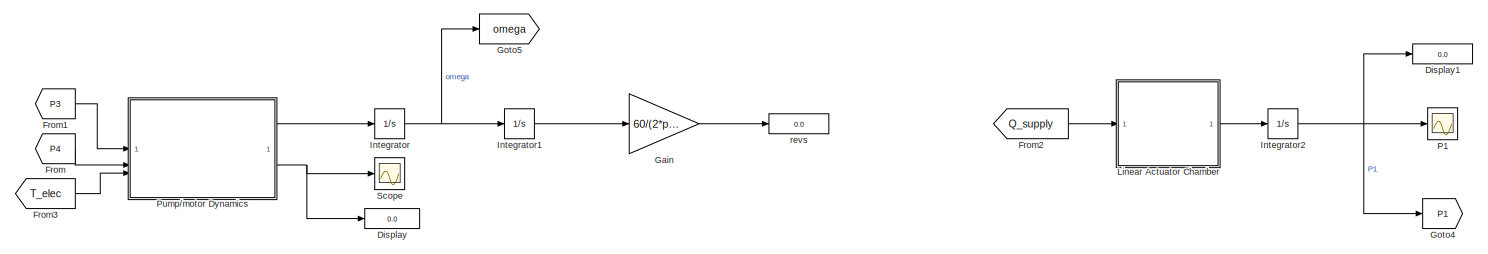
[diagram: root canvas - part 1/3, top right region]
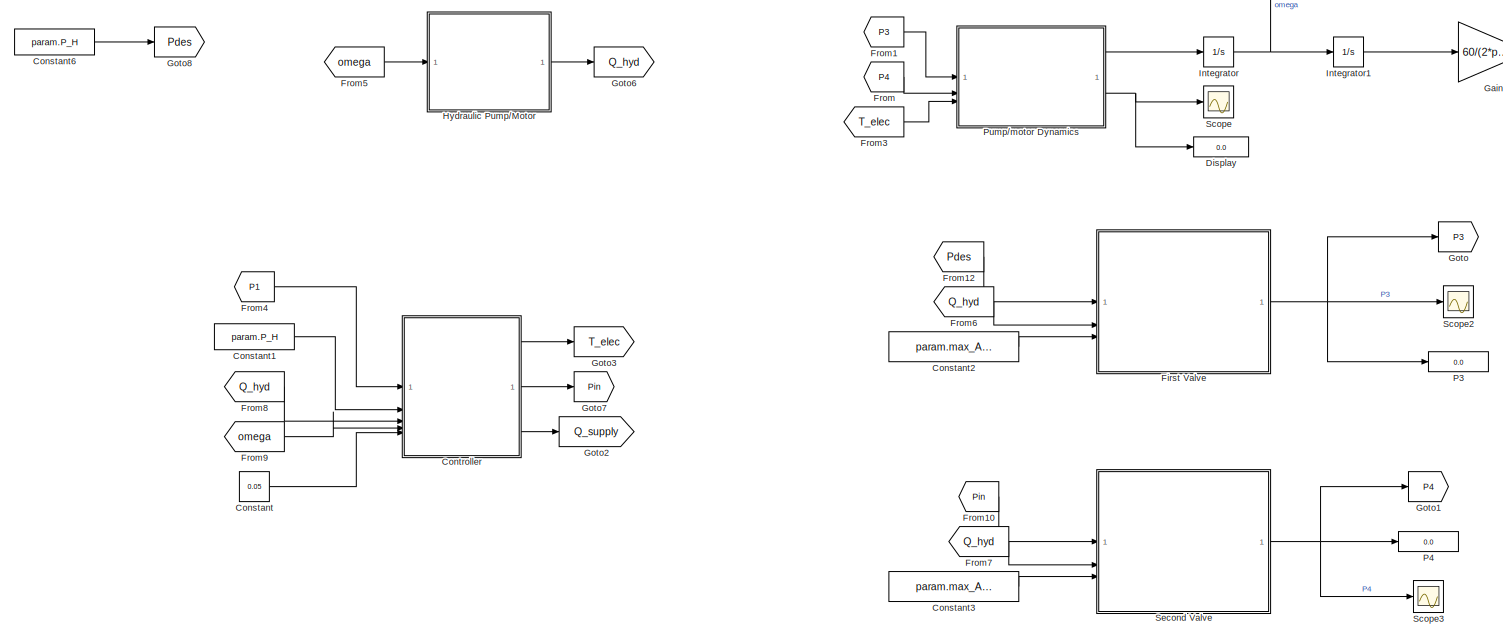
[diagram: root canvas - part 2/3, top left region]
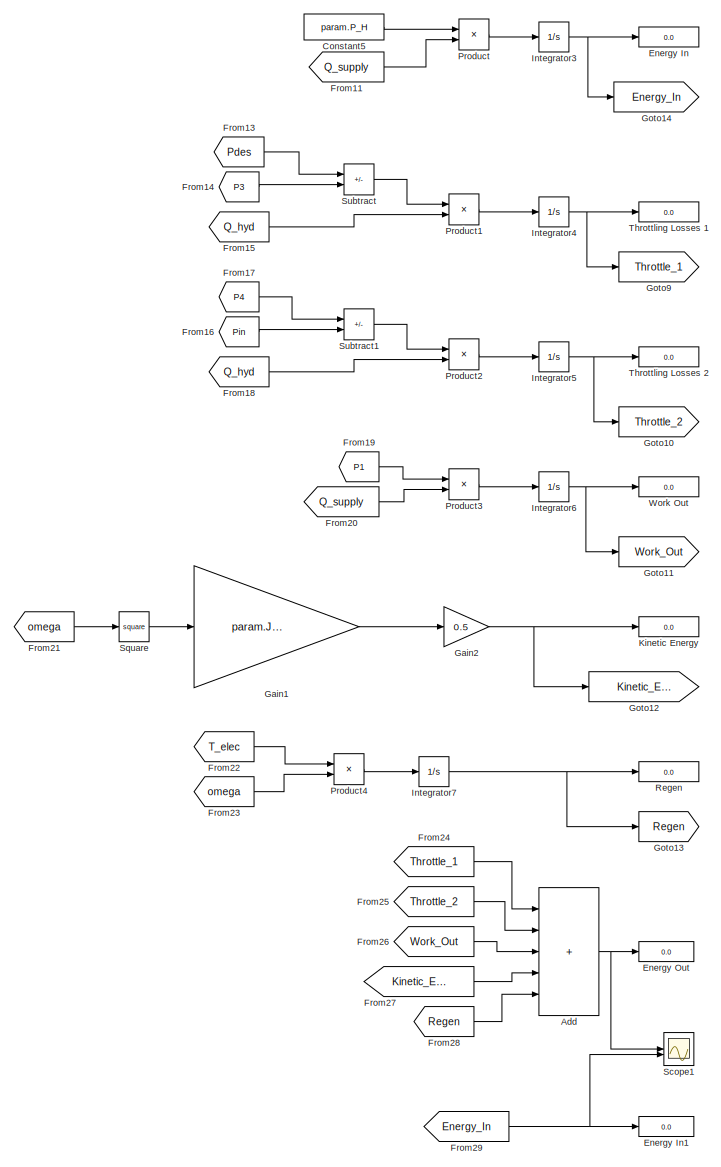
[diagram: root canvas - part 3/3, right side, full height]
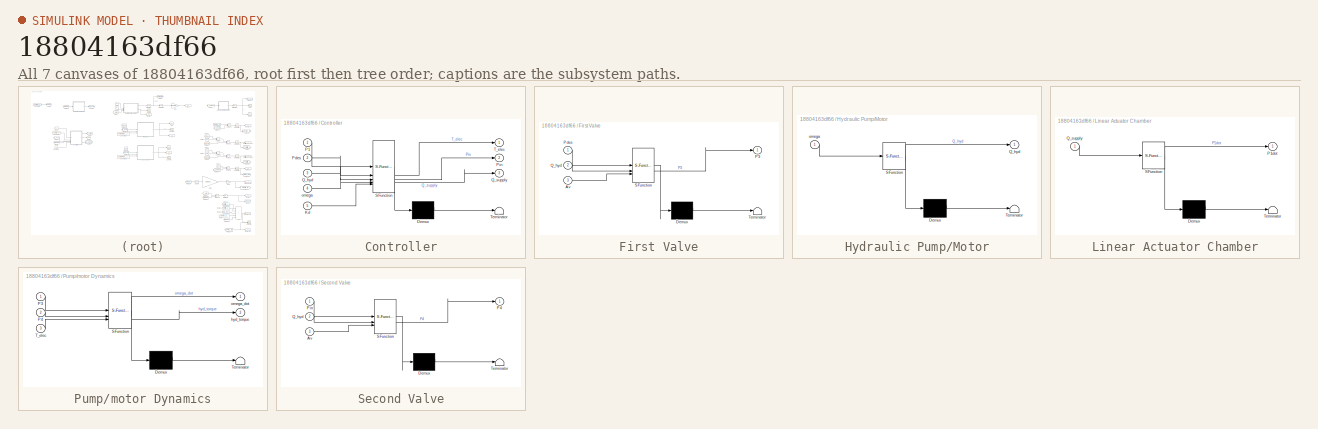
[diagram: thumbnail index - all 7 canvases of the model, root first then tree order]
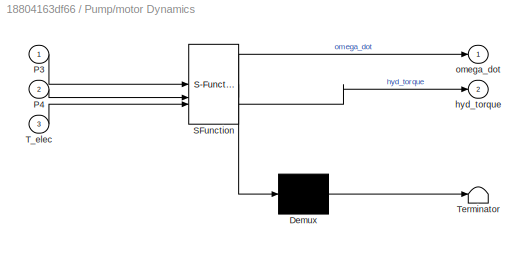
MODEL slx_18804163df66
KIND model
CONFIG AbsTol = auto
CONFIG EnableMultiTasking = off
CONFIG FixedStep = 1e-6
CONFIG InitFcn = %% Parameters\n\nparam = struct();\n\n% Volume of chambers \nparam.V1_0 = 1e-3;\nparam.V2_0 = 20e-6;\n\n% Pressure rails\nparam.P_H = 20e6;\nparam.P_M = 10e6;\n\n% Valve things\nparam.max_Avt = 0.5*0.25*pi*(20e-3)^2;\nparam.Cd = 0.6;\n\n% Fluid properties\nparam.beta = 1.8e9;\nparam.rho = 870;\n\n% Electric motor stuff\nparam.Kt = 70.5e-3;\nparam.Ke = 70.5e-3;\nparam.J_elec = 3000e-7;\n\n% Pump things\nparam.J_hyd = 3000e-...<+69ch>
CONFIG MaxStep = auto
CONFIG MinStep = auto
CONFIG RelTol = 1e-3
CONFIG SampleTimeConstraint = Unconstrained
CONFIG SolverName = ode4
CONFIG StartTime = 0.0
CONFIG StopTime = 0.25
BLOCK [Sum] Add
  IconShape = rectangular
  Inputs = +++++
BLOCK [Constant] Constant
  Value = 0.05
BLOCK [Constant] Constant1
  Value = param.P_H
BLOCK [Constant] Constant2
  Value = param.max_Avt
BLOCK [Constant] Constant3
  Value = param.max_Avt
BLOCK [Constant] Constant5
  Value = param.P_H
BLOCK [Constant] Constant6
  Value = param.P_H
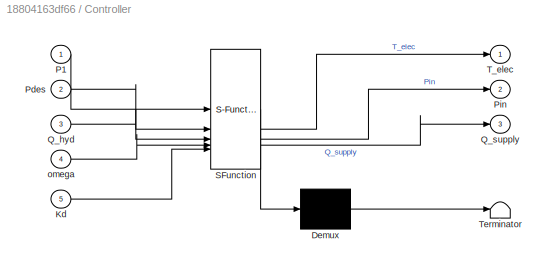
BLOCK [SubSystem] Controller
  ErrorFcn = Stateflow.Translate.translate
  LibrarySourceBlock = simulink/User-Defined\nFunctions/MATLAB Function
  PermitHierarchicalResolution = ExplicitOnly
  SFBlockType = MATLAB Function
  TreatAsAtomicUnit = on
BLOCK [Demux] Controller/ Demux 
  Outputs = 1
BLOCK [S-Function] Controller/ SFunction 
  EnableBusSupport = on
  FunctionName = sf_sfun
  PortCounts = [5 4]
  SFcnIsStateOwnerBlock = off
  SFunctionDeploymentMode = off
  Tag = Stateflow S-Function 6
BLOCK [Terminator] Controller/ Terminator 
BLOCK [Inport] Controller/Kd
  Port = 5
BLOCK [Inport] Controller/P1
BLOCK [Inport] Controller/Pdes
  Port = 2
BLOCK [Outport] Controller/Pin
  Port = 2
BLOCK [Inport] Controller/Q_hyd
  Port = 3
BLOCK [Outport] Controller/Q_supply
  Port = 3
BLOCK [Outport] Controller/T_elec
BLOCK [Inport] Controller/omega
  Port = 4
BLOCK [Display] Display
  Decimation = 1
BLOCK [Display] Display1
  Decimation = 1
BLOCK [Display] Energy In
  Decimation = 1
BLOCK [Display] Energy In1
  Decimation = 1
BLOCK [Display] Energy Out
  Decimation = 1
BLOCK [SubSystem] First Valve
  ErrorFcn = Stateflow.Translate.translate
  PermitHierarchicalResolution = ExplicitOnly
  SFBlockType = MATLAB Function
  TreatAsAtomicUnit = on
BLOCK [Demux] First Valve/ Demux 
  Outputs = 1
BLOCK [S-Function] First Valve/ SFunction 
  EnableBusSupport = on
  FunctionName = sf_sfun
  Parameters = param
  PortCounts = [3 2]
  SFcnIsStateOwnerBlock = off
  SFunctionDeploymentMode = off
  Tag = Stateflow S-Function 3
BLOCK [Terminator] First Valve/ Terminator 
BLOCK [Inport] First Valve/Av
  Port = 3
BLOCK [Outport] First Valve/P3
BLOCK [Inport] First Valve/Pdes
BLOCK [Inport] First Valve/Q_hyd
  Port = 2
BLOCK [From] From
  GotoTag = P4
BLOCK [From] From1
  GotoTag = P3
BLOCK [From] From10
  GotoTag = Pin
BLOCK [From] From11
  GotoTag = Q_supply
BLOCK [From] From12
  GotoTag = Pdes
BLOCK [From] From13
  GotoTag = Pdes
BLOCK [From] From14
  GotoTag = P3
BLOCK [From] From15
  GotoTag = Q_hyd
BLOCK [From] From16
  GotoTag = Pin
BLOCK [From] From17
  GotoTag = P4
BLOCK [From] From18
  GotoTag = Q_hyd
BLOCK [From] From19
  GotoTag = P1
BLOCK [From] From2
  GotoTag = Q_supply
BLOCK [From] From20
  GotoTag = Q_supply
BLOCK [From] From21
  GotoTag = omega
BLOCK [From] From22
  GotoTag = T_elec
BLOCK [From] From23
  GotoTag = omega
BLOCK [From] From24
  GotoTag = Throttle_1
BLOCK [From] From25
  GotoTag = Throttle_2
BLOCK [From] From26
  GotoTag = Work_Out
BLOCK [From] From27
  GotoTag = Kinetic_Energy
BLOCK [From] From28
  GotoTag = Regen
BLOCK [From] From29
  GotoTag = Energy_In
BLOCK [From] From3
  GotoTag = T_elec
BLOCK [From] From4
  GotoTag = P1
BLOCK [From] From5
  GotoTag = omega
BLOCK [From] From6
  GotoTag = Q_hyd
BLOCK [From] From7
  GotoTag = Q_hyd
BLOCK [From] From8
  GotoTag = Q_hyd
BLOCK [From] From9
  GotoTag = omega
BLOCK [Gain] Gain
  Gain = 60/(2*pi)
BLOCK [Gain] Gain1
  Gain = param.J_elec+param.J_hyd
BLOCK [Gain] Gain2
  Gain = 0.5
BLOCK [Goto] Goto
  GotoTag = P3
BLOCK [Goto] Goto1
  GotoTag = P4
BLOCK [Goto] Goto10
  GotoTag = Throttle_2
BLOCK [Goto] Goto11
  GotoTag = Work_Out
BLOCK [Goto] Goto12
  GotoTag = Kinetic_Energy
BLOCK [Goto] Goto13
  GotoTag = Regen
BLOCK [Goto] Goto14
  GotoTag = Energy_In
BLOCK [Goto] Goto2
  GotoTag = Q_supply
BLOCK [Goto] Goto3
  GotoTag = T_elec
BLOCK [Goto] Goto4
  GotoTag = P1
BLOCK [Goto] Goto5
  GotoTag = omega
BLOCK [Goto] Goto6
  GotoTag = Q_hyd
BLOCK [Goto] Goto7
  GotoTag = Pin
BLOCK [Goto] Goto8
  GotoTag = Pdes
BLOCK [Goto] Goto9
  GotoTag = Throttle_1
BLOCK [SubSystem] Hydraulic Pump//Motor
  ErrorFcn = Stateflow.Translate.translate
  PermitHierarchicalResolution = ExplicitOnly
  SFBlockType = MATLAB Function
  TreatAsAtomicUnit = on
BLOCK [Demux] Hydraulic Pump//Motor/ Demux 
  Outputs = 1
BLOCK [S-Function] Hydraulic Pump//Motor/ SFunction 
  EnableBusSupport = on
  FunctionName = sf_sfun
  Parameters = param
  PortCounts = [1 2]
  SFcnIsStateOwnerBlock = off
  SFunctionDeploymentMode = off
  Tag = Stateflow S-Function 2
BLOCK [Terminator] Hydraulic Pump//Motor/ Terminator 
BLOCK [Outport] Hydraulic Pump//Motor/Q_hyd
BLOCK [Inport] Hydraulic Pump//Motor/omega
BLOCK [Integrator] Integrator
BLOCK [Integrator] Integrator1
BLOCK [Integrator] Integrator2
  InitialCondition = param.P_M
BLOCK [Integrator] Integrator3
BLOCK [Integrator] Integrator4
BLOCK [Integrator] Integrator5
BLOCK [Integrator] Integrator6
BLOCK [Integrator] Integrator7
BLOCK [Display] Kinetic Energy
  Decimation = 1
BLOCK [SubSystem] Linear Actuator Chamber
  ErrorFcn = Stateflow.Translate.translate
  PermitHierarchicalResolution = ExplicitOnly
  SFBlockType = MATLAB Function
  TreatAsAtomicUnit = on
BLOCK [Demux] Linear Actuator Chamber/ Demux 
  Outputs = 1
BLOCK [S-Function] Linear Actuator Chamber/ SFunction 
  EnableBusSupport = on
  FunctionName = sf_sfun
  Parameters = param
  PortCounts = [1 2]
  SFcnIsStateOwnerBlock = off
  SFunctionDeploymentMode = off
  Tag = Stateflow S-Function 5
BLOCK [Terminator] Linear Actuator Chamber/ Terminator 
BLOCK [Outport] Linear Actuator Chamber/P1dot
BLOCK [Inport] Linear Actuator Chamber/Q_supply
BLOCK [Scope] P1
  Floating = off
  NumInputPorts = 1
  ScopeSpecificationString = Simulink.scopes.TimeScopeBlockCfg('CurrentConfiguration', extmgr.ConfigurationSet(extmgr.Configuration('Core','General UI',true),extmgr.Configuration('Core','Source UI',true),extmgr.Configuration('Sources','WiredSimulink',true,'DataLoggingVariableName','ScopeData1'),extmgr.Configuration('Visuals','Time Domain',true,'SerializedDisplays',{struct('MinYLimReal','8751246.6759','MaxYLimReal','21238779.9...<+1479ch>
BLOCK [Display] P3
  Decimation = 1
BLOCK [Display] P4
  Decimation = 1
BLOCK [Product] Product
BLOCK [Product] Product1
BLOCK [Product] Product2
BLOCK [Product] Product3
BLOCK [Product] Product4
BLOCK [SubSystem] Pump//motor Dynamics
  ErrorFcn = Stateflow.Translate.translate
  PermitHierarchicalResolution = ExplicitOnly
  SFBlockType = MATLAB Function
  TreatAsAtomicUnit = on
BLOCK [Demux] Pump//motor Dynamics/ Demux 
  Outputs = 1
BLOCK [S-Function] Pump//motor Dynamics/ SFunction 
  EnableBusSupport = on
  FunctionName = sf_sfun
  Parameters = param
  PortCounts = [3 3]
  SFcnIsStateOwnerBlock = off
  SFunctionDeploymentMode = off
  Tag = Stateflow S-Function 1
BLOCK [Terminator] Pump//motor Dynamics/ Terminator 
BLOCK [Inport] Pump//motor Dynamics/P3
BLOCK [Inport] Pump//motor Dynamics/P4
  Port = 2
BLOCK [Inport] Pump//motor Dynamics/T_elec
  Port = 3
BLOCK [Outport] Pump//motor Dynamics/hyd_torque
  Port = 2
BLOCK [Outport] Pump//motor Dynamics/omega_dot
BLOCK [Display] Regen
  Decimation = 1
BLOCK [Scope] Scope
  Floating = off
  NumInputPorts = 1
  ScopeSpecificationString = Simulink.scopes.TimeScopeBlockCfg('CurrentConfiguration', extmgr.ConfigurationSet(extmgr.Configuration('Core','General UI',true),extmgr.Configuration('Core','Source UI',true),extmgr.Configuration('Sources','WiredSimulink',true,'DataLoggingVariableName','ScopeData1'),extmgr.Configuration('Visuals','Time Domain',true),extmgr.Configuration('Tools','Plot Navigation',true),extmgr.Configuration('Tools',...<+40ch>
BLOCK [Scope] Scope1
  Floating = off
  NumInputPorts = 2
  ScopeSpecificationString = Simulink.scopes.TimeScopeBlockCfg('CurrentConfiguration', extmgr.ConfigurationSet(extmgr.Configuration('Core','General UI',true),extmgr.Configuration('Core','Source UI',true),extmgr.Configuration('Sources','WiredSimulink',true,'DataLoggingVariableName','ScopeData2'),extmgr.Configuration('Visuals','Time Domain',true,'SerializedDisplays',{struct('MinYLimReal','-13.87504','MaxYLimReal','124.87533','Y...<+1414ch>
BLOCK [Scope] Scope2
  Floating = off
  NumInputPorts = 1
  ScopeSpecificationString = Simulink.scopes.TimeScopeBlockCfg('CurrentConfiguration', extmgr.ConfigurationSet(extmgr.Configuration('Core','General UI',true),extmgr.Configuration('Core','Source UI',true),extmgr.Configuration('Sources','WiredSimulink',true,'DataLoggingVariableName','ScopeData1'),extmgr.Configuration('Visuals','Time Domain',true,'SerializedDisplays',{struct('MinYLimReal','-380.34798','MaxYLimReal','380.34798','...<+1401ch>
BLOCK [Scope] Scope3
  Floating = off
  NumInputPorts = 1
  ScopeSpecificationString = Simulink.scopes.TimeScopeBlockCfg('CurrentConfiguration', extmgr.ConfigurationSet(extmgr.Configuration('Core','General UI',true),extmgr.Configuration('Core','Source UI',true),extmgr.Configuration('Sources','WiredSimulink',true,'DataLoggingVariableName','ScopeData2'),extmgr.Configuration('Visuals','Time Domain',true,'SerializedDisplays',{struct('MinYLimReal','19999887.9226','MaxYLimReal','20000227....<+1464ch>
BLOCK [SubSystem] Second Valve
  ErrorFcn = Stateflow.Translate.translate
  PermitHierarchicalResolution = ExplicitOnly
  SFBlockType = MATLAB Function
  TreatAsAtomicUnit = on
BLOCK [Demux] Second Valve/ Demux 
  Outputs = 1
BLOCK [S-Function] Second Valve/ SFunction 
  EnableBusSupport = on
  FunctionName = sf_sfun
  Parameters = param
  PortCounts = [3 2]
  SFcnIsStateOwnerBlock = off
  SFunctionDeploymentMode = off
  Tag = Stateflow S-Function 4
BLOCK [Terminator] Second Valve/ Terminator 
BLOCK [Inport] Second Valve/Av
  Port = 3
BLOCK [Outport] Second Valve/P4
BLOCK [Inport] Second Valve/Pin
BLOCK [Inport] Second Valve/Q_hyd
  Port = 2
BLOCK [Math] Square
  Operator = square
BLOCK [Sum] Subtract
  IconShape = rectangular
  Inputs = +-
BLOCK [Sum] Subtract1
  IconShape = rectangular
  Inputs = +-
BLOCK [Display] Throttling Losses 1
  Decimation = 1
BLOCK [Display] Throttling Losses 2
  Decimation = 1
BLOCK [Display] Work Out
  Decimation = 1
BLOCK [Display] revs
  Decimation = 1
NET Add:1 -> Energy Out:1, Scope1:1
LINE Constant1:1 -> Controller:2
LINE Constant2:1 -> First Valve:3
LINE Constant3:1 -> Second Valve:3
LINE Constant5:1 -> Product:1
LINE Constant6:1 -> Goto8:1
LINE Constant:1 -> Controller:5
LINE Controller:1 -> Goto3:1
LINE Controller:2 -> Goto7:1
LINE Controller:3 -> Goto2:1
NET First Valve:1 -> Goto:1, P3:1, Scope2:1
LINE From10:1 -> Second Valve:1
LINE From11:1 -> Product:2
LINE From12:1 -> First Valve:1
LINE From13:1 -> Subtract:1
LINE From14:1 -> Subtract:2
LINE From15:1 -> Product1:2
LINE From16:1 -> Subtract1:2
LINE From17:1 -> Subtract1:1
LINE From18:1 -> Product2:2
LINE From19:1 -> Product3:1
LINE From1:1 -> Pump//motor Dynamics:1
LINE From20:1 -> Product3:2
LINE From21:1 -> Square:1
LINE From22:1 -> Product4:1
LINE From23:1 -> Product4:2
LINE From24:1 -> Add:1
LINE From25:1 -> Add:2
LINE From26:1 -> Add:3
LINE From27:1 -> Add:4
LINE From28:1 -> Add:5
NET From29:1 -> Energy In1:1, Scope1:2
LINE From2:1 -> Linear Actuator Chamber:1
LINE From3:1 -> Pump//motor Dynamics:3
LINE From4:1 -> Controller:1
LINE From5:1 -> Hydraulic Pump//Motor:1
LINE From6:1 -> First Valve:2
LINE From7:1 -> Second Valve:2
LINE From8:1 -> Controller:3
LINE From9:1 -> Controller:4
LINE From:1 -> Pump//motor Dynamics:2
LINE Gain1:1 -> Gain2:1
NET Gain2:1 -> Goto12:1, Kinetic Energy:1
LINE Gain:1 -> revs:1
LINE Hydraulic Pump//Motor:1 -> Goto6:1
LINE Integrator1:1 -> Gain:1
NET Integrator2:1 -> Display1:1, Goto4:1, P1:1
NET Integrator3:1 -> Energy In:1, Goto14:1
NET Integrator4:1 -> Goto9:1, Throttling Losses 1:1
NET Integrator5:1 -> Goto10:1, Throttling Losses 2:1
NET Integrator6:1 -> Goto11:1, Work Out:1
NET Integrator7:1 -> Goto13:1, Regen:1
NET Integrator:1 -> Goto5:1, Integrator1:1
LINE Linear Actuator Chamber:1 -> Integrator2:1
LINE Product1:1 -> Integrator4:1
LINE Product2:1 -> Integrator5:1
LINE Product3:1 -> Integrator6:1
LINE Product4:1 -> Integrator7:1
LINE Product:1 -> Integrator3:1
LINE Pump//motor Dynamics:1 -> Integrator:1
NET Pump//motor Dynamics:2 -> Display:1, Scope:1
NET Second Valve:1 -> Goto1:1, P4:1, Scope3:1
LINE Square:1 -> Gain1:1
LINE Subtract1:1 -> Product2:1
LINE Subtract:1 -> Product1:1
note: NET lines group one-source signal fan-out (src -> all destinations, sorted); 1:1 wires keep LINE
CHART Pump//motor Dynamics states=1 transitions=1
  STATE_LABEL 'eML_blk_kernel()'
  STATE_LABEL 'SCRIPT:\nfunction [omega_dot, hyd_torque] = fcn(P3, P4, param, T_elec)\n\nhyd_torque = (param.hyd_D/(2*pi))*(P3-P4);\nomega_dot = (1/(param.J_elec+param.J_hyd))*(hyd_torque - T_elec);\n'
CHART Hydraulic Pump//Motor states=1 transitions=1
  STATE_LABEL 'eML_blk_kernel()'
  STATE_LABEL 'SCRIPT:\nfunction Q_hyd   = fcn(omega, param)\n\nQ_hyd = (param.hyd_D/(2*pi))*omega;\n'
CHART First Valve states=1 transitions=1
  STATE_LABEL 'eML_blk_kernel()'
  STATE_LABEL 'SCRIPT:\nfunction P3 = fcn(Pdes, Q_hyd, Av, param)\n\nK = param.Cd*Av*sqrt(2/param.rho);\n\nP3 = Pdes - (Q_hyd/K)^2;\n'
CHART Second Valve states=1 transitions=1
  STATE_LABEL 'eML_blk_kernel()'
  STATE_LABEL 'SCRIPT:\nfunction P4 = fcn(Pin, Q_hyd, Av, param)\n\nK = param.Cd*Av*sqrt(2/param.rho);\nP4 = Pin + (Q_hyd/K)^2;\n'
CHART Linear Actuator Chamber states=1 transitions=1
  STATE_LABEL 'eML_blk_kernel()'
  STATE_LABEL 'SCRIPT:\nfunction P1dot = fcn(Q_supply, param)\n\nP1dot = (param.beta/param.V1_0)*(Q_supply);\n'
CHART Controller states=1 transitions=1
  STATE_LABEL 'eML_blk_kernel()'
  STATE_LABEL 'SCRIPT:\nfunction [T_elec, Pin, Q_supply] = fcn(P1, Pdes, Q_hyd, omega, Kd)\n\nif abs(P1-Pdes)<1e4\n    T_elec = Kd*omega;\n    Pin = Pdes;\n    Q_supply = 0;\nelse\n    T_elec = 0;\n    Pin = P1;\n    Q_supply = Q_hyd;\nend\n\n'
CHART  states=0 transitions=0
CHART  states=0 transitions=0
CHART  states=0 transitions=0
CHART  states=0 transitions=0
CHART  states=0 transitions=0
CHART  states=0 transitions=0
